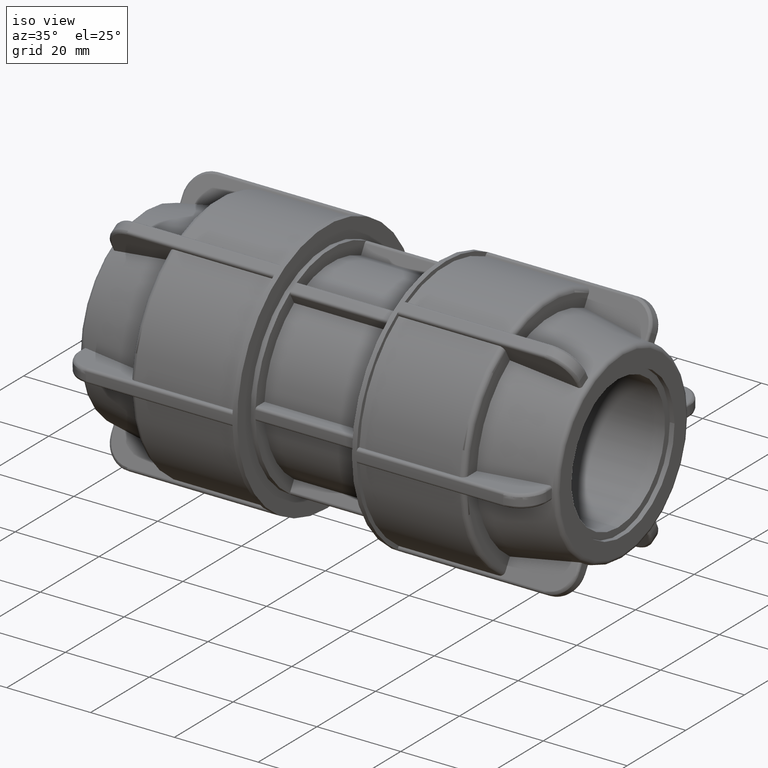
[diagram: clean part render]
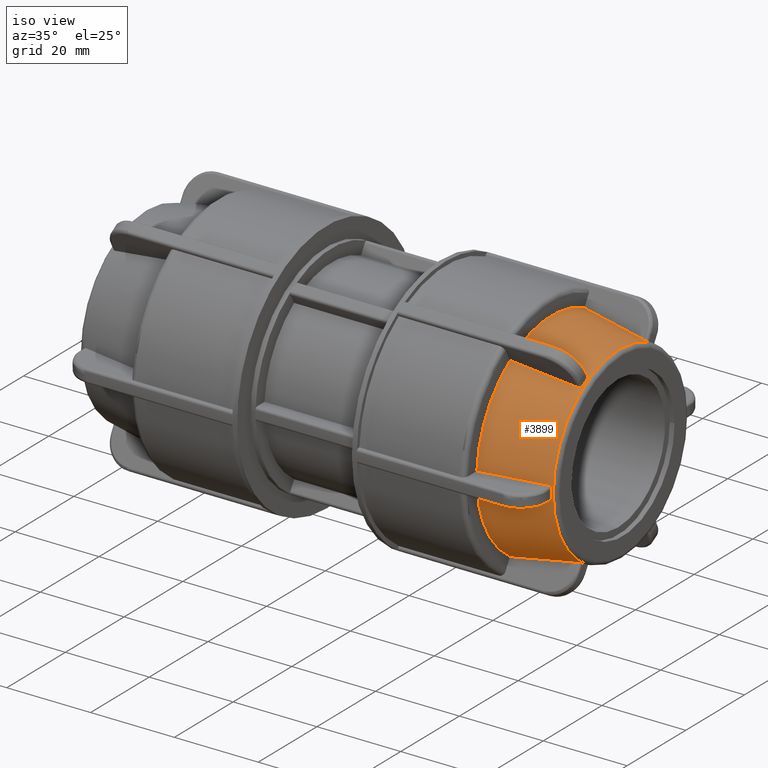
[diagram: same view with one face highlighted and labeled with its STEP entity id]
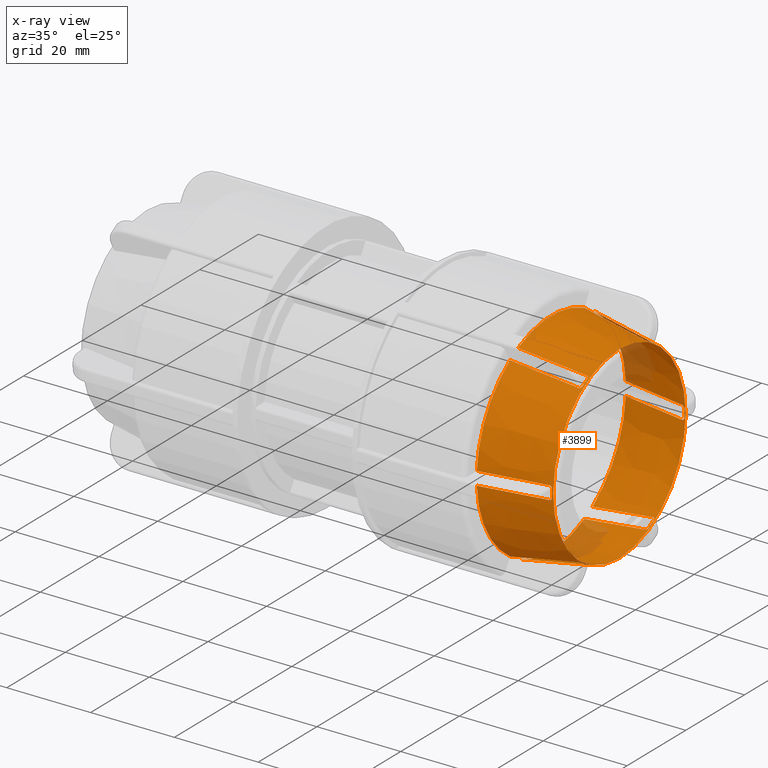
[diagram: x-ray of the same camera — body ghosted, the highlighted face saturated]
A machine part, iso view. The second image highlights one B-rep face of the part: STEP entity #3899.
The next image is the same camera in x-ray: the body ghosted, the highlighted face saturated — about 7% of this face is hidden behind the body in this view.
In plain terms, the highlighted conical surface has half-angle 10 deg.
Its self-contained STEP definition (entity closure, byte-faithful):
#16=CONICAL_SURFACE('',#4328,23.9075956850574,10.);
#55=(
BOUNDED_CURVE()
B_SPLINE_CURVE(2,(#7132,#7133,#7134),.UNSPECIFIED.,.F.,.F.)
B_SPLINE_CURVE_WITH_KNOTS((3,3),(0.0655542960663818,1.62073025413874),
 .UNSPECIFIED.)
CURVE()
GEOMETRIC_REPRESENTATION_ITEM()
RATIONAL_B_SPLINE_CURVE((1.000134261904,1.00165971067379,1.))
REPRESENTATION_ITEM('')
);
#56=(
BOUNDED_CURVE()
B_SPLINE_CURVE(2,(#7295,#7296,#7297),.UNSPECIFIED.,.F.,.F.)
B_SPLINE_CURVE_WITH_KNOTS((3,3),(0.0655542962843476,1.62073025413874),
 .UNSPECIFIED.)
CURVE()
GEOMETRIC_REPRESENTATION_ITEM()
RATIONAL_B_SPLINE_CURVE((1.00013426193979,1.00165971111071,1.))
REPRESENTATION_ITEM('')
);
#57=(
BOUNDED_CURVE()
B_SPLINE_CURVE(2,(#7458,#7459,#7460),.UNSPECIFIED.,.F.,.F.)
B_SPLINE_CURVE_WITH_KNOTS((3,3),(0.0655542961577784,1.62073025413874),
 .UNSPECIFIED.)
CURVE()
GEOMETRIC_REPRESENTATION_ITEM()
RATIONAL_B_SPLINE_CURVE((1.0001342619195,1.00165971086305,1.))
REPRESENTATION_ITEM('')
);
#58=(
BOUNDED_CURVE()
B_SPLINE_CURVE(2,(#7621,#7622,#7623),.UNSPECIFIED.,.F.,.F.)
B_SPLINE_CURVE_WITH_KNOTS((3,3),(0.0655542961547034,1.62073025413874),
 .UNSPECIFIED.)
CURVE()
GEOMETRIC_REPRESENTATION_ITEM()
RATIONAL_B_SPLINE_CURVE((1.00013426191843,1.0016597108499,1.))
REPRESENTATION_ITEM('')
);
#59=(
BOUNDED_CURVE()
B_SPLINE_CURVE(2,(#7784,#7785,#7786),.UNSPECIFIED.,.F.,.F.)
B_SPLINE_CURVE_WITH_KNOTS((3,3),(0.0655542976162313,1.62073025413874),
 .UNSPECIFIED.)
CURVE()
GEOMETRIC_REPRESENTATION_ITEM()
RATIONAL_B_SPLINE_CURVE((1.00013426214939,1.00165971366806,1.))
REPRESENTATION_ITEM('')
);
#60=(
BOUNDED_CURVE()
B_SPLINE_CURVE(2,(#7789,#7790,#7791),.UNSPECIFIED.,.F.,.F.)
B_SPLINE_CURVE_WITH_KNOTS((3,3),(0.,1.55517595793305),.UNSPECIFIED.)
CURVE()
GEOMETRIC_REPRESENTATION_ITEM()
RATIONAL_B_SPLINE_CURVE((1.,1.00165971095281,1.00013426192686))
REPRESENTATION_ITEM('')
);
#61=(
BOUNDED_CURVE()
B_SPLINE_CURVE(2,(#7810,#7811,#7812),.UNSPECIFIED.,.F.,.F.)
B_SPLINE_CURVE_WITH_KNOTS((3,3),(0.,1.55517595787353),.UNSPECIFIED.)
CURVE()
GEOMETRIC_REPRESENTATION_ITEM()
RATIONAL_B_SPLINE_CURVE((1.,1.0016597110938,1.00013426193838))
REPRESENTATION_ITEM('')
);
#62=(
BOUNDED_CURVE()
B_SPLINE_CURVE(2,(#7831,#7832,#7833),.UNSPECIFIED.,.F.,.F.)
B_SPLINE_CURVE_WITH_KNOTS((3,3),(0.,1.55517595798037),.UNSPECIFIED.)
CURVE()
GEOMETRIC_REPRESENTATION_ITEM()
RATIONAL_B_SPLINE_CURVE((1.,1.00165971085302,1.00013426191869))
REPRESENTATION_ITEM('')
);
#63=(
BOUNDED_CURVE()
B_SPLINE_CURVE(2,(#7852,#7853,#7854),.UNSPECIFIED.,.F.,.F.)
B_SPLINE_CURVE_WITH_KNOTS((3,3),(0.,1.55517595812831),.UNSPECIFIED.)
CURVE()
GEOMETRIC_REPRESENTATION_ITEM()
RATIONAL_B_SPLINE_CURVE((1.,1.00165971064241,1.00013426190135))
REPRESENTATION_ITEM('')
);
#64=(
BOUNDED_CURVE()
B_SPLINE_CURVE(2,(#7873,#7874,#7875),.UNSPECIFIED.,.F.,.F.)
B_SPLINE_CURVE_WITH_KNOTS((3,3),(0.,1.55517595809443),.UNSPECIFIED.)
CURVE()
GEOMETRIC_REPRESENTATION_ITEM()
RATIONAL_B_SPLINE_CURVE((1.,1.00165971071832,1.00013426190756))
REPRESENTATION_ITEM('')
);
#65=(
BOUNDED_CURVE()
B_SPLINE_CURVE(2,(#7970,#7971,#7972),.UNSPECIFIED.,.F.,.F.)
B_SPLINE_CURVE_WITH_KNOTS((3,3),(0.,1.55517595819276),.UNSPECIFIED.)
CURVE()
GEOMETRIC_REPRESENTATION_ITEM()
RATIONAL_B_SPLINE_CURVE((1.,1.00165971046912,1.0001342618872))
REPRESENTATION_ITEM('')
);
#66=(
BOUNDED_CURVE()
B_SPLINE_CURVE(2,(#8004,#8005,#8006),.UNSPECIFIED.,.F.,.F.)
B_SPLINE_CURVE_WITH_KNOTS((3,3),(0.0655542959458113,1.62073025413874),
 .UNSPECIFIED.)
CURVE()
GEOMETRIC_REPRESENTATION_ITEM()
RATIONAL_B_SPLINE_CURVE((1.00013426188761,1.00165971047426,1.))
REPRESENTATION_ITEM('')
);
#117=B_SPLINE_CURVE_WITH_KNOTS('',3,(#6978,#6979,#6980,#6981,#6982,#6983,
#6984,#6985,#6986,#6987,#6988,#6989,#6990),.UNSPECIFIED.,.F.,.F.,(4,3,2,
2,2,4),(-0.000767840524645836,0.,0.0231822966853898,0.0463645933707796,
0.0692313858836191,0.0916294434136542),.UNSPECIFIED.);
#120=B_SPLINE_CURVE_WITH_KNOTS('',3,(#7100,#7101,#7102,#7103,#7104,#7105,
#7106,#7107,#7108,#7109,#7110,#7111,#7112),.UNSPECIFIED.,.F.,.F.,(4,2,2,
2,3,4),(-0.0916294434136541,-0.069231385883619,-0.0463645933707797,-0.0231822966853898,
0.,0.000767840524952592),.UNSPECIFIED.);
#124=B_SPLINE_CURVE_WITH_KNOTS('',3,(#7189,#7190,#7191,#7192,#7193,#7194,
#7195,#7196,#7197,#7198,#7199,#7200,#7201),.UNSPECIFIED.,.F.,.F.,(4,3,2,
2,2,4),(-0.00076784052464629,0.,0.0231822966853897,0.0463645933707795,0.0692313858836189,
0.0916294434136541),.UNSPECIFIED.);
#127=B_SPLINE_CURVE_WITH_KNOTS('',3,(#7263,#7264,#7265,#7266,#7267,#7268,
#7269,#7270,#7271,#7272,#7273,#7274,#7275),.UNSPECIFIED.,.F.,.F.,(4,2,2,
2,3,4),(-0.0916294434136544,-0.069231385883619,-0.0463645933707794,-0.0231822966853897,
0.,0.000767840524954348),.UNSPECIFIED.);
#131=B_SPLINE_CURVE_WITH_KNOTS('',3,(#7352,#7353,#7354,#7355,#7356,#7357,
#7358,#7359,#7360,#7361,#7362,#7363,#7364),.UNSPECIFIED.,.F.,.F.,(4,3,2,
2,2,4),(-0.000767840524645642,0.,0.0231822966853896,0.0463645933707792,
0.0692313858836187,0.0916294434136544),.UNSPECIFIED.);
#134=B_SPLINE_CURVE_WITH_KNOTS('',3,(#7426,#7427,#7428,#7429,#7430,#7431,
#7432,#7433,#7434,#7435,#7436,#7437,#7438),.UNSPECIFIED.,.F.,.F.,(4,2,2,
2,3,4),(-0.091629443413654,-0.0692313858836189,-0.0463645933707795,-0.0231822966853897,
0.,0.000767840524953134),.UNSPECIFIED.);
#138=B_SPLINE_CURVE_WITH_KNOTS('',3,(#7515,#7516,#7517,#7518,#7519,#7520,
#7521,#7522,#7523,#7524,#7525,#7526,#7527),.UNSPECIFIED.,.F.,.F.,(4,3,2,
2,2,4),(-0.000767840524643574,0.,0.0231822966853894,0.0463645933707788,
0.0692313858836181,0.0916294434136536),.UNSPECIFIED.);
#141=B_SPLINE_CURVE_WITH_KNOTS('',3,(#7589,#7590,#7591,#7592,#7593,#7594,
#7595,#7596,#7597,#7598,#7599,#7600,#7601),.UNSPECIFIED.,.F.,.F.,(4,2,2,
2,3,4),(-0.0916294434136538,-0.0692313858836188,-0.0463645933707795,-0.0231822966853897,
0.,0.000767840524954132),.UNSPECIFIED.);
#145=B_SPLINE_CURVE_WITH_KNOTS('',3,(#7678,#7679,#7680,#7681,#7682,#7683,
#7684,#7685,#7686,#7687,#7688,#7689,#7690),.UNSPECIFIED.,.F.,.F.,(4,3,2,
2,2,4),(-0.000767840524644688,0.,0.0231822966853897,0.0463645933707795,
0.0692313858836188,0.0916294434136539),.UNSPECIFIED.);
#148=B_SPLINE_CURVE_WITH_KNOTS('',3,(#7752,#7753,#7754,#7755,#7756,#7757,
#7758,#7759,#7760,#7761,#7762,#7763,#7764),.UNSPECIFIED.,.F.,.F.,(4,2,2,
2,3,4),(-0.0916294434136547,-0.0692313858836193,-0.0463645933707798,-0.0231822966853899,
0.,0.000767840524964452),.UNSPECIFIED.);
#157=B_SPLINE_CURVE_WITH_KNOTS('',3,(#7974,#7975,#7976,#7977,#7978,#7979,
#7980,#7981,#7982,#7983,#7984,#7985,#7986),.UNSPECIFIED.,.F.,.F.,(4,3,2,
2,2,4),(-0.000767840524643001,0.,0.0231822966853897,0.0463645933707793,
0.069231385883619,0.0916294434136549),.UNSPECIFIED.);
#158=B_SPLINE_CURVE_WITH_KNOTS('',3,(#7990,#7991,#7992,#7993,#7994,#7995,
#7996,#7997,#7998,#7999,#8000,#8001,#8002),.UNSPECIFIED.,.F.,.F.,(4,2,2,
2,3,4),(-0.091629443413654,-0.0692313858836188,-0.0463645933707794,-0.0231822966853897,
0.,0.000767840524951757),.UNSPECIFIED.);
#209=FACE_BOUND('',#766,.T.);
#513=FACE_OUTER_BOUND('',#765,.T.);
#765=EDGE_LOOP('',(#3480,#3481,#3482,#3483,#3484,#3485,#3486,#3487,#3488,
#3489,#3490,#3491,#3492,#3493,#3494,#3495,#3496,#3497,#3498,#3499,#3500,
#3501,#3502,#3503,#3504,#3505,#3506,#3507,#3508,#3509,#3510,#3511,#3512,
#3513,#3514,#3515));
#766=EDGE_LOOP('',(#3516));
#1396=CIRCLE('',#4200,22.6010127580076);
#1417=CIRCLE('',#4229,22.6010127580076);
#1425=CIRCLE('',#4244,22.6010127580076);
#1433=CIRCLE('',#4259,22.6010127580076);
#1441=CIRCLE('',#4274,22.6010127580076);
#1466=CIRCLE('',#4329,25.4151913701147);
#1467=CIRCLE('',#4330,22.6010127580076);
#1468=CIRCLE('',#4331,25.4151913701147);
#1469=CIRCLE('',#4332,25.4151913701147);
#1470=CIRCLE('',#4333,25.4151913701147);
#1471=CIRCLE('',#4334,25.4151913701147);
#1472=CIRCLE('',#4335,25.4151913701147);
#1473=CIRCLE('',#4336,22.5457081218349);
#1716=VERTEX_POINT('',#6976);
#1717=VERTEX_POINT('',#6977);
#1719=VERTEX_POINT('',#6996);
#1746=VERTEX_POINT('',#7099);
#1750=VERTEX_POINT('',#7130);
#1755=VERTEX_POINT('',#7187);
#1756=VERTEX_POINT('',#7188);
#1758=VERTEX_POINT('',#7207);
#1762=VERTEX_POINT('',#7262);
#1766=VERTEX_POINT('',#7293);
#1771=VERTEX_POINT('',#7350);
#1772=VERTEX_POINT('',#7351);
#1774=VERTEX_POINT('',#7370);
#1778=VERTEX_POINT('',#7425);
#1782=VERTEX_POINT('',#7456);
#1787=VERTEX_POINT('',#7513);
#1788=VERTEX_POINT('',#7514);
#1790=VERTEX_POINT('',#7533);
#1794=VERTEX_POINT('',#7588);
#1798=VERTEX_POINT('',#7619);
#1803=VERTEX_POINT('',#7676);
#1804=VERTEX_POINT('',#7677);
#1806=VERTEX_POINT('',#7696);
#1810=VERTEX_POINT('',#7751);
#1814=VERTEX_POINT('',#7782);
#1815=VERTEX_POINT('',#7788);
#1819=VERTEX_POINT('',#7809);
#1823=VERTEX_POINT('',#7830);
#1827=VERTEX_POINT('',#7851);
#1831=VERTEX_POINT('',#7872);
#1844=VERTEX_POINT('',#7967);
#1845=VERTEX_POINT('',#7969);
#1846=VERTEX_POINT('',#7973);
#1847=VERTEX_POINT('',#7987);
#1848=VERTEX_POINT('',#7989);
#1849=VERTEX_POINT('',#8003);
#1850=VERTEX_POINT('',#8012);
#2215=EDGE_CURVE('',#1716,#1717,#117,.F.);
#2220=EDGE_CURVE('',#1716,#1719,#1396,.T.);
#2251=EDGE_CURVE('',#1746,#1719,#120,.F.);
#2257=EDGE_CURVE('',#1746,#1750,#55,.T.);
#2264=EDGE_CURVE('',#1755,#1756,#124,.F.);
#2269=EDGE_CURVE('',#1755,#1758,#1417,.T.);
#2276=EDGE_CURVE('',#1762,#1758,#127,.F.);
#2282=EDGE_CURVE('',#1762,#1766,#56,.T.);
#2289=EDGE_CURVE('',#1771,#1772,#131,.F.);
#2294=EDGE_CURVE('',#1771,#1774,#1425,.T.);
#2301=EDGE_CURVE('',#1778,#1774,#134,.F.);
#2307=EDGE_CURVE('',#1778,#1782,#57,.T.);
#2314=EDGE_CURVE('',#1787,#1788,#138,.F.);
#2319=EDGE_CURVE('',#1787,#1790,#1433,.T.);
#2326=EDGE_CURVE('',#1794,#1790,#141,.F.);
#2332=EDGE_CURVE('',#1794,#1798,#58,.T.);
#2339=EDGE_CURVE('',#1803,#1804,#145,.F.);
#2344=EDGE_CURVE('',#1803,#1806,#1441,.T.);
#2351=EDGE_CURVE('',#1810,#1806,#148,.F.);
#2357=EDGE_CURVE('',#1810,#1814,#59,.T.);
#2358=EDGE_CURVE('',#1815,#1717,#60,.T.);
#2363=EDGE_CURVE('',#1819,#1756,#61,.T.);
#2368=EDGE_CURVE('',#1823,#1772,#62,.T.);
#2373=EDGE_CURVE('',#1827,#1788,#63,.T.);
#2378=EDGE_CURVE('',#1831,#1804,#64,.T.);
#2410=EDGE_CURVE('',#1750,#1844,#1466,.T.);
#2411=EDGE_CURVE('',#1844,#1845,#65,.T.);
#2412=EDGE_CURVE('',#1846,#1845,#157,.F.);
#2413=EDGE_CURVE('',#1846,#1847,#1467,.T.);
#2414=EDGE_CURVE('',#1848,#1847,#158,.F.);
#2415=EDGE_CURVE('',#1848,#1849,#66,.T.);
#2416=EDGE_CURVE('',#1849,#1831,#1468,.T.);
#2417=EDGE_CURVE('',#1814,#1827,#1469,.T.);
#2418=EDGE_CURVE('',#1798,#1823,#1470,.T.);
#2419=EDGE_CURVE('',#1782,#1819,#1471,.T.);
#2420=EDGE_CURVE('',#1766,#1815,#1472,.T.);
#2421=EDGE_CURVE('',#1850,#1850,#1473,.T.);
#3480=ORIENTED_EDGE('',*,*,#2358,.T.);
#3481=ORIENTED_EDGE('',*,*,#2215,.F.);
#3482=ORIENTED_EDGE('',*,*,#2220,.T.);
#3483=ORIENTED_EDGE('',*,*,#2251,.F.);
#3484=ORIENTED_EDGE('',*,*,#2257,.T.);
#3485=ORIENTED_EDGE('',*,*,#2410,.T.);
#3486=ORIENTED_EDGE('',*,*,#2411,.T.);
#3487=ORIENTED_EDGE('',*,*,#2412,.F.);
#3488=ORIENTED_EDGE('',*,*,#2413,.T.);
#3489=ORIENTED_EDGE('',*,*,#2414,.F.);
#3490=ORIENTED_EDGE('',*,*,#2415,.T.);
#3491=ORIENTED_EDGE('',*,*,#2416,.T.);
#3492=ORIENTED_EDGE('',*,*,#2378,.T.);
#3493=ORIENTED_EDGE('',*,*,#2339,.F.);
#3494=ORIENTED_EDGE('',*,*,#2344,.T.);
#3495=ORIENTED_EDGE('',*,*,#2351,.F.);
#3496=ORIENTED_EDGE('',*,*,#2357,.T.);
#3497=ORIENTED_EDGE('',*,*,#2417,.T.);
#3498=ORIENTED_EDGE('',*,*,#2373,.T.);
#3499=ORIENTED_EDGE('',*,*,#2314,.F.);
#3500=ORIENTED_EDGE('',*,*,#2319,.T.);
#3501=ORIENTED_EDGE('',*,*,#2326,.F.);
#3502=ORIENTED_EDGE('',*,*,#2332,.T.);
#3503=ORIENTED_EDGE('',*,*,#2418,.T.);
#3504=ORIENTED_EDGE('',*,*,#2368,.T.);
#3505=ORIENTED_EDGE('',*,*,#2289,.F.);
#3506=ORIENTED_EDGE('',*,*,#2294,.T.);
#3507=ORIENTED_EDGE('',*,*,#2301,.F.);
#3508=ORIENTED_EDGE('',*,*,#2307,.T.);
#3509=ORIENTED_EDGE('',*,*,#2419,.T.);
#3510=ORIENTED_EDGE('',*,*,#2363,.T.);
#3511=ORIENTED_EDGE('',*,*,#2264,.F.);
#3512=ORIENTED_EDGE('',*,*,#2269,.T.);
#3513=ORIENTED_EDGE('',*,*,#2276,.F.);
#3514=ORIENTED_EDGE('',*,*,#2282,.T.);
#3515=ORIENTED_EDGE('',*,*,#2420,.T.);
#3516=ORIENTED_EDGE('',*,*,#2421,.F.);
#3899=ADVANCED_FACE('',(#513,#209),#16,.T.);
#4200=AXIS2_PLACEMENT_3D('',#6998,#5068,#5069);
#4229=AXIS2_PLACEMENT_3D('',#7209,#5146,#5147);
#4244=AXIS2_PLACEMENT_3D('',#7372,#5185,#5186);
#4259=AXIS2_PLACEMENT_3D('',#7535,#5224,#5225);
#4274=AXIS2_PLACEMENT_3D('',#7698,#5263,#5264);
#4328=AXIS2_PLACEMENT_3D('',#7966,#5395,#5396);
#4329=AXIS2_PLACEMENT_3D('',#7968,#5397,#5398);
#4330=AXIS2_PLACEMENT_3D('',#7988,#5399,#5400);
#4331=AXIS2_PLACEMENT_3D('',#8007,#5401,#5402);
#4332=AXIS2_PLACEMENT_3D('',#8008,#5403,#5404);
#4333=AXIS2_PLACEMENT_3D('',#8009,#5405,#5406);
#4334=AXIS2_PLACEMENT_3D('',#8010,#5407,#5408);
#4335=AXIS2_PLACEMENT_3D('',#8011,#5409,#5410);
#4336=AXIS2_PLACEMENT_3D('',#8013,#5411,#5412);
#5068=DIRECTION('center_axis',(1.,3.71680826341573E-16,1.13482456060336E-16));
#5069=DIRECTION('ref_axis',(-4.37199952896308E-16,1.,0.));
#5146=DIRECTION('center_axis',(1.,5.02719079451042E-16,1.13482456060336E-16));
#5147=DIRECTION('ref_axis',(-4.37199952896308E-16,1.,0.));
#5185=DIRECTION('center_axis',(1.,5.68238206005777E-16,3.69778549322349E-32));
#5186=DIRECTION('ref_axis',(-4.37199952896308E-16,1.,0.));
#5224=DIRECTION('center_axis',(1.,5.02719079451042E-16,-1.13482456060336E-16));
#5225=DIRECTION('ref_axis',(-4.37199952896308E-16,1.,0.));
#5263=DIRECTION('center_axis',(1.,3.71680826341573E-16,-1.13482456060336E-16));
#5264=DIRECTION('ref_axis',(-4.37199952896308E-16,1.,0.));
#5395=DIRECTION('center_axis',(-1.,-3.06161699786838E-16,0.));
#5396=DIRECTION('ref_axis',(-4.37199952896308E-16,1.,0.));
#5397=DIRECTION('center_axis',(1.,3.06161699786838E-16,0.));
#5398=DIRECTION('ref_axis',(0.,0.,-1.));
#5399=DIRECTION('center_axis',(1.,3.06161699786838E-16,0.));
#5400=DIRECTION('ref_axis',(-4.37199952896308E-16,1.,0.));
#5401=DIRECTION('center_axis',(1.,3.06161699786838E-16,0.));
#5402=DIRECTION('ref_axis',(0.,0.,-1.));
#5403=DIRECTION('center_axis',(1.,3.06161699786838E-16,0.));
#5404=DIRECTION('ref_axis',(0.,0.,-1.));
#5405=DIRECTION('center_axis',(1.,3.06161699786838E-16,0.));
#5406=DIRECTION('ref_axis',(0.,0.,-1.));
#5407=DIRECTION('center_axis',(1.,3.06161699786838E-16,0.));
#5408=DIRECTION('ref_axis',(0.,0.,-1.));
#5409=DIRECTION('center_axis',(1.,3.06161699786838E-16,0.));
#5410=DIRECTION('ref_axis',(0.,0.,-1.));
#5411=DIRECTION('center_axis',(1.,3.93945674671423E-16,-3.44314501433615E-32));
#5412=DIRECTION('ref_axis',(3.93945674671423E-16,-1.,3.06161699786838E-17));
#6976=CARTESIAN_POINT('',(55.86,10.4322946955236,-20.0492644521782));
#6977=CARTESIAN_POINT('',(55.25,9.94042720757571,-20.4173249724612));
#6978=CARTESIAN_POINT('Ctrl Pts',(55.2499999999999,9.94042720757551,-20.4173249724608));
#6979=CARTESIAN_POINT('Ctrl Pts',(55.2525313182367,9.94020348170955,-20.416937467894));
#6980=CARTESIAN_POINT('Ctrl Pts',(55.2550574753589,9.9399944147475,-20.4165438385735));
#6981=CARTESIAN_POINT('Ctrl Pts',(55.2575780596981,9.9397998637907,-20.4161442349146));
#6982=CARTESIAN_POINT('Ctrl Pts',(55.3336784113928,9.93392606857401,-20.4040795804956));
#6983=CARTESIAN_POINT('Ctrl Pts',(55.4149581703995,9.94128998502657,-20.3845723913928));
#6984=CARTESIAN_POINT('Ctrl Pts',(55.5645201742986,9.98562496325053,-20.3335149258585));
#6985=CARTESIAN_POINT('Ctrl Pts',(55.6327944579925,10.0225964086339,-20.3019416647875));
#6986=CARTESIAN_POINT('Ctrl Pts',(55.7396642789802,10.1114407461394,-20.2367738582365));
#6987=CARTESIAN_POINT('Ctrl Pts',(55.7855987874435,10.1689040960951,-20.1989590460628));
#6988=CARTESIAN_POINT('Ctrl Pts',(55.8454314138073,10.2962725015387,-20.1224762525526));
#6989=CARTESIAN_POINT('Ctrl Pts',(55.86,10.3658858286557,-20.0838191796702));
#6990=CARTESIAN_POINT('Ctrl Pts',(55.86,10.4322946955236,-20.0492644521782));
#6996=CARTESIAN_POINT('',(55.86,12.1470249950168,-19.0592644521782));
#6998=CARTESIAN_POINT('Origin',(55.86,1.71021925500928E-14,0.));
#7099=CARTESIAN_POINT('',(55.25,12.7117084996859,-18.8173249724611));
#7100=CARTESIAN_POINT('Ctrl Pts',(55.86,12.1470249950168,-19.0592644521782));
#7101=CARTESIAN_POINT('Ctrl Pts',(55.86,12.2101547002797,-19.0190300501801));
#7102=CARTESIAN_POINT('Ctrl Pts',(55.8454314138073,12.2784393709903,-18.9780716768959));
#7103=CARTESIAN_POINT('Ctrl Pts',(55.7855987874435,12.4083596158443,-18.9060087988974));
#7104=CARTESIAN_POINT('Ctrl Pts',(55.7396642789802,12.4698398788039,-18.8751514841361));
#7105=CARTESIAN_POINT('Ctrl Pts',(55.6327944579925,12.5706990235387,-18.8307939341494));
#7106=CARTESIAN_POINT('Ctrl Pts',(55.5645201742986,12.6165279923982,-18.8145623537683));
#7107=CARTESIAN_POINT('Ctrl Pts',(55.4149581703995,12.6829125437158,-18.8016958691173));
#7108=CARTESIAN_POINT('Ctrl Pts',(55.3336784113928,12.7034882232615,-18.8050721249494));
#7109=CARTESIAN_POINT('Ctrl Pts',(55.2575780596981,12.7109996228679,-18.8161913080331));
#7110=CARTESIAN_POINT('Ctrl Pts',(55.2550574753579,12.7112484143097,-18.8165595959337));
#7111=CARTESIAN_POINT('Ctrl Pts',(55.2525313182358,12.7114847738199,-18.8169374678942));
#7112=CARTESIAN_POINT('Ctrl Pts',(55.25,12.7117084996857,-18.8173249724608));
#7130=CARTESIAN_POINT('',(39.9,14.0680295414836,-21.1665419282295));
#7132=CARTESIAN_POINT('Ctrl Pts',(55.2500000000004,12.7117084996859,-18.817324972461));
#7133=CARTESIAN_POINT('Ctrl Pts',(48.0085874818365,13.3517273099741,-19.9258700696802));
#7134=CARTESIAN_POINT('Ctrl Pts',(39.9,14.0680295414836,-21.1665419282296));
#7187=CARTESIAN_POINT('',(55.86,-12.1470249950168,-19.0592644521781));
#7188=CARTESIAN_POINT('',(55.25,-12.7117084996859,-18.8173249724612));
#7189=CARTESIAN_POINT('Ctrl Pts',(55.2499999999999,-12.7117084996857,-18.8173249724608));
#7190=CARTESIAN_POINT('Ctrl Pts',(55.2525313182367,-12.7114847738198,-18.816937467894));
#7191=CARTESIAN_POINT('Ctrl Pts',(55.255057475359,-12.7112484143096,-18.8165595959335));
#7192=CARTESIAN_POINT('Ctrl Pts',(55.2575780596981,-12.7109996228679,-18.8161913080331));
#7193=CARTESIAN_POINT('Ctrl Pts',(55.3336784113928,-12.7034882232615,-18.8050721249493));
#7194=CARTESIAN_POINT('Ctrl Pts',(55.4149581703995,-12.6829125437158,-18.8016958691172));
#7195=CARTESIAN_POINT('Ctrl Pts',(55.5645201742986,-12.6165279923982,-18.8145623537682));
#7196=CARTESIAN_POINT('Ctrl Pts',(55.6327944579925,-12.5706990235387,-18.8307939341494));
#7197=CARTESIAN_POINT('Ctrl Pts',(55.7396642789802,-12.4698398788039,-18.8751514841361));
#7198=CARTESIAN_POINT('Ctrl Pts',(55.7855987874435,-12.4083596158443,-18.9060087988974));
#7199=CARTESIAN_POINT('Ctrl Pts',(55.8454314138073,-12.2784393709903,-18.9780716768959));
#7200=CARTESIAN_POINT('Ctrl Pts',(55.86,-12.2101547002797,-19.0190300501801));
#7201=CARTESIAN_POINT('Ctrl Pts',(55.86,-12.1470249950168,-19.0592644521781));
#7207=CARTESIAN_POINT('',(55.86,-10.4322946955236,-20.0492644521782));
#7209=CARTESIAN_POINT('Origin',(55.86,1.71021925500928E-14,0.));
#7262=CARTESIAN_POINT('',(55.25,-9.94042720757572,-20.4173249724612));
#7263=CARTESIAN_POINT('Ctrl Pts',(55.86,-10.4322946955236,-20.0492644521782));
#7264=CARTESIAN_POINT('Ctrl Pts',(55.86,-10.3658858286557,-20.0838191796702));
#7265=CARTESIAN_POINT('Ctrl Pts',(55.8454314138073,-10.2962725015387,-20.1224762525526));
#7266=CARTESIAN_POINT('Ctrl Pts',(55.7855987874435,-10.1689040960951,-20.1989590460627));
#7267=CARTESIAN_POINT('Ctrl Pts',(55.7396642789802,-10.1114407461394,-20.2367738582365));
#7268=CARTESIAN_POINT('Ctrl Pts',(55.6327944579925,-10.0225964086339,-20.3019416647875));
#7269=CARTESIAN_POINT('Ctrl Pts',(55.5645201742986,-9.98562496325053,-20.3335149258585));
#7270=CARTESIAN_POINT('Ctrl Pts',(55.4149581703995,-9.94128998502657,-20.3845723913928));
#7271=CARTESIAN_POINT('Ctrl Pts',(55.3336784113928,-9.93392606857401,-20.4040795804956));
#7272=CARTESIAN_POINT('Ctrl Pts',(55.2575780596981,-9.9397998637907,-20.4161442349145));
#7273=CARTESIAN_POINT('Ctrl Pts',(55.2550574753579,-9.93999441474757,-20.4165438385737));
#7274=CARTESIAN_POINT('Ctrl Pts',(55.2525313182358,-9.94020348170964,-20.4169374678942));
#7275=CARTESIAN_POINT('Ctrl Pts',(55.2499999999999,-9.94042720757551,-20.4173249724608));
#7293=CARTESIAN_POINT('',(39.9,-11.2967482493734,-22.7665419282295));
#7295=CARTESIAN_POINT('Ctrl Pts',(55.2500000000004,-9.94042720757569,-20.4173249724611));
#7296=CARTESIAN_POINT('Ctrl Pts',(48.0085875089548,-10.5804460154677,-21.5258700655297));
#7297=CARTESIAN_POINT('Ctrl Pts',(39.9,-11.2967482493734,-22.7665419282295));
#7350=CARTESIAN_POINT('',(55.86,-22.5793196905404,0.990000000000008));
#7351=CARTESIAN_POINT('',(55.25,-22.6521357072616,1.60000000000001));
#7352=CARTESIAN_POINT('Ctrl Pts',(55.25,-22.6521357072612,1.60000000000001));
#7353=CARTESIAN_POINT('Ctrl Pts',(55.2525313182367,-22.6516882555293,1.60000000000001));
#7354=CARTESIAN_POINT('Ctrl Pts',(55.255057475359,-22.651242829057,1.59998424264));
#7355=CARTESIAN_POINT('Ctrl Pts',(55.2575780596981,-22.6507994866585,1.59995292688143));
#7356=CARTESIAN_POINT('Ctrl Pts',(55.3336784113928,-22.6374142918355,1.59900745554623));
#7357=CARTESIAN_POINT('Ctrl Pts',(55.4149581703995,-22.6242025287424,1.58287652227559));
#7358=CARTESIAN_POINT('Ctrl Pts',(55.5645201742986,-22.6021529556487,1.51895257209023));
#7359=CARTESIAN_POINT('Ctrl Pts',(55.6327944579925,-22.5932954321726,1.47114773063808));
#7360=CARTESIAN_POINT('Ctrl Pts',(55.7396642789802,-22.5812806249433,1.36162237410043));
#7361=CARTESIAN_POINT('Ctrl Pts',(55.7855987874435,-22.5772637119394,1.29295024716539));
#7362=CARTESIAN_POINT('Ctrl Pts',(55.8454314138073,-22.5747118725289,1.14440457565668));
#7363=CARTESIAN_POINT('Ctrl Pts',(55.86,-22.5760405289354,1.06478912949014));
#7364=CARTESIAN_POINT('Ctrl Pts',(55.86,-22.5793196905404,0.990000000000007));
#7370=CARTESIAN_POINT('',(55.86,-22.5793196905404,-0.989999999999994));
#7372=CARTESIAN_POINT('Origin',(55.86,1.71021925500928E-14,0.));
#7425=CARTESIAN_POINT('',(55.25,-22.6521357072616,-1.59999999999999));
#7426=CARTESIAN_POINT('Ctrl Pts',(55.86,-22.5793196905404,-0.989999999999994));
#7427=CARTESIAN_POINT('Ctrl Pts',(55.86,-22.5760405289354,-1.06478912949012));
#7428=CARTESIAN_POINT('Ctrl Pts',(55.8454314138073,-22.5747118725289,-1.14440457565667));
#7429=CARTESIAN_POINT('Ctrl Pts',(55.7855987874435,-22.5772637119394,-1.29295024716537));
#7430=CARTESIAN_POINT('Ctrl Pts',(55.7396642789802,-22.5812806249433,-1.36162237410041));
#7431=CARTESIAN_POINT('Ctrl Pts',(55.6327944579925,-22.5932954321726,-1.47114773063806));
#7432=CARTESIAN_POINT('Ctrl Pts',(55.5645201742986,-22.6021529556487,-1.51895257209021));
#7433=CARTESIAN_POINT('Ctrl Pts',(55.4149581703995,-22.6242025287424,-1.58287652227557));
#7434=CARTESIAN_POINT('Ctrl Pts',(55.3336784113928,-22.6374142918355,-1.59900745554621));
#7435=CARTESIAN_POINT('Ctrl Pts',(55.2575780596981,-22.6507994866585,-1.59995292688142));
#7436=CARTESIAN_POINT('Ctrl Pts',(55.255057475358,-22.6512428290572,-1.59998424264));
#7437=CARTESIAN_POINT('Ctrl Pts',(55.2525313182358,-22.6516882555295,-1.59999999999999));
#7438=CARTESIAN_POINT('Ctrl Pts',(55.25,-22.6521357072612,-1.59999999999999));
#7456=CARTESIAN_POINT('',(39.9,-25.364777790857,-1.59999999999999));
#7458=CARTESIAN_POINT('Ctrl Pts',(55.2500000000004,-22.6521357072615,-1.59999999999999));
#7459=CARTESIAN_POINT('Ctrl Pts',(48.0085874932514,-23.9321733258208,-1.59999999999999));
#7460=CARTESIAN_POINT('Ctrl Pts',(39.9,-25.3647777908571,-1.59999999999999));
#7513=CARTESIAN_POINT('',(55.86,-10.4322946955236,20.0492644521782));
#7514=CARTESIAN_POINT('',(55.25,-9.94042720757564,20.4173249724611));
#7515=CARTESIAN_POINT('Ctrl Pts',(55.25,-9.94042720757549,20.4173249724608));
#7516=CARTESIAN_POINT('Ctrl Pts',(55.2525313182367,-9.94020348170953,20.416937467894));
#7517=CARTESIAN_POINT('Ctrl Pts',(55.255057475359,-9.93999441474747,20.4165438385735));
#7518=CARTESIAN_POINT('Ctrl Pts',(55.2575780596981,-9.93979986379068,20.4161442349146));
#7519=CARTESIAN_POINT('Ctrl Pts',(55.3336784113928,-9.93392606857399,20.4040795804956));
#7520=CARTESIAN_POINT('Ctrl Pts',(55.4149581703995,-9.94128998502655,20.3845723913928));
#7521=CARTESIAN_POINT('Ctrl Pts',(55.5645201742986,-9.98562496325051,20.3335149258585));
#7522=CARTESIAN_POINT('Ctrl Pts',(55.6327944579925,-10.0225964086339,20.3019416647875));
#7523=CARTESIAN_POINT('Ctrl Pts',(55.7396642789802,-10.1114407461394,20.2367738582365));
#7524=CARTESIAN_POINT('Ctrl Pts',(55.7855987874435,-10.1689040960951,20.1989590460628));
#7525=CARTESIAN_POINT('Ctrl Pts',(55.8454314138073,-10.2962725015386,20.1224762525526));
#7526=CARTESIAN_POINT('Ctrl Pts',(55.86,-10.3658858286557,20.0838191796702));
#7527=CARTESIAN_POINT('Ctrl Pts',(55.86,-10.4322946955236,20.0492644521782));
#7533=CARTESIAN_POINT('',(55.86,-12.1470249950168,19.0592644521782));
#7535=CARTESIAN_POINT('Origin',(55.86,1.71021925500928E-14,0.));
#7588=CARTESIAN_POINT('',(55.25,-12.7117084996859,18.8173249724611));
#7589=CARTESIAN_POINT('Ctrl Pts',(55.86,-12.1470249950168,19.0592644521782));
#7590=CARTESIAN_POINT('Ctrl Pts',(55.86,-12.2101547002797,19.0190300501801));
#7591=CARTESIAN_POINT('Ctrl Pts',(55.8454314138073,-12.2784393709903,18.9780716768959));
#7592=CARTESIAN_POINT('Ctrl Pts',(55.7855987874435,-12.4083596158443,18.9060087988974));
#7593=CARTESIAN_POINT('Ctrl Pts',(55.7396642789802,-12.4698398788039,18.8751514841361));
#7594=CARTESIAN_POINT('Ctrl Pts',(55.6327944579925,-12.5706990235387,18.8307939341494));
#7595=CARTESIAN_POINT('Ctrl Pts',(55.5645201742986,-12.6165279923982,18.8145623537682));
#7596=CARTESIAN_POINT('Ctrl Pts',(55.4149581703995,-12.6829125437158,18.8016958691172));
#7597=CARTESIAN_POINT('Ctrl Pts',(55.3336784113928,-12.7034882232615,18.8050721249494));
#7598=CARTESIAN_POINT('Ctrl Pts',(55.2575780596981,-12.7109996228678,18.8161913080331));
#7599=CARTESIAN_POINT('Ctrl Pts',(55.2550574753579,-12.7112484143096,18.8165595959337));
#7600=CARTESIAN_POINT('Ctrl Pts',(55.2525313182357,-12.7114847738198,18.8169374678942));
#7601=CARTESIAN_POINT('Ctrl Pts',(55.2499999999999,-12.7117084996857,18.8173249724608));
#7619=CARTESIAN_POINT('',(39.9,-14.0680295414836,21.1665419282295));
#7621=CARTESIAN_POINT('Ctrl Pts',(55.2500000000004,-12.7117084996859,18.8173249724611));
#7622=CARTESIAN_POINT('Ctrl Pts',(48.0085874928182,-13.3517273090037,19.9258700679994));
#7623=CARTESIAN_POINT('Ctrl Pts',(39.9,-14.0680295414836,21.1665419282295));
#7676=CARTESIAN_POINT('',(55.86,12.1470249950168,19.0592644521782));
#7677=CARTESIAN_POINT('',(55.25,12.7117084996859,18.8173249724611));
#7678=CARTESIAN_POINT('Ctrl Pts',(55.2499999999999,12.7117084996857,18.8173249724608));
#7679=CARTESIAN_POINT('Ctrl Pts',(55.2525313182367,12.7114847738198,18.816937467894));
#7680=CARTESIAN_POINT('Ctrl Pts',(55.2550574753589,12.7112484143096,18.8165595959335));
#7681=CARTESIAN_POINT('Ctrl Pts',(55.2575780596981,12.7109996228679,18.8161913080331));
#7682=CARTESIAN_POINT('Ctrl Pts',(55.3336784113928,12.7034882232615,18.8050721249494));
#7683=CARTESIAN_POINT('Ctrl Pts',(55.4149581703995,12.6829125437158,18.8016958691172));
#7684=CARTESIAN_POINT('Ctrl Pts',(55.5645201742986,12.6165279923982,18.8145623537682));
#7685=CARTESIAN_POINT('Ctrl Pts',(55.6327944579925,12.5706990235387,18.8307939341494));
#7686=CARTESIAN_POINT('Ctrl Pts',(55.7396642789802,12.4698398788039,18.8751514841361));
#7687=CARTESIAN_POINT('Ctrl Pts',(55.7855987874435,12.4083596158443,18.9060087988974));
#7688=CARTESIAN_POINT('Ctrl Pts',(55.8454314138073,12.2784393709903,18.9780716768959));
#7689=CARTESIAN_POINT('Ctrl Pts',(55.86,12.2101547002797,19.0190300501801));
#7690=CARTESIAN_POINT('Ctrl Pts',(55.86,12.1470249950168,19.0592644521782));
#7696=CARTESIAN_POINT('',(55.86,10.4322946955236,20.0492644521782));
#7698=CARTESIAN_POINT('Origin',(55.86,1.71021925500928E-14,0.));
#7751=CARTESIAN_POINT('',(55.25,9.94042720757605,20.4173249724617));
#7752=CARTESIAN_POINT('Ctrl Pts',(55.86,10.4322946955236,20.0492644521782));
#7753=CARTESIAN_POINT('Ctrl Pts',(55.86,10.3658858286558,20.0838191796702));
#7754=CARTESIAN_POINT('Ctrl Pts',(55.8454314138073,10.2962725015387,20.1224762525526));
#7755=CARTESIAN_POINT('Ctrl Pts',(55.7855987874435,10.1689040960951,20.1989590460628));
#7756=CARTESIAN_POINT('Ctrl Pts',(55.7396642789802,10.1114407461394,20.2367738582365));
#7757=CARTESIAN_POINT('Ctrl Pts',(55.6327944579925,10.022596408634,20.3019416647875));
#7758=CARTESIAN_POINT('Ctrl Pts',(55.5645201742986,9.98562496325056,20.3335149258585));
#7759=CARTESIAN_POINT('Ctrl Pts',(55.4149581703995,9.94128998502659,20.3845723913928));
#7760=CARTESIAN_POINT('Ctrl Pts',(55.3336784113928,9.93392606857403,20.4040795804956));
#7761=CARTESIAN_POINT('Ctrl Pts',(55.2575780596981,9.93979986379072,20.4161442349146));
#7762=CARTESIAN_POINT('Ctrl Pts',(55.2550574753579,9.9399944147476,20.4165438385737));
#7763=CARTESIAN_POINT('Ctrl Pts',(55.2525313182357,9.94020348170967,20.4169374678942));
#7764=CARTESIAN_POINT('Ctrl Pts',(55.2499999999998,9.94042720757554,20.4173249724608));
#7782=CARTESIAN_POINT('',(39.9,11.2967482493734,22.7665419282295));
#7784=CARTESIAN_POINT('Ctrl Pts',(55.2500000000004,9.94042720757602,20.4173249724616));
#7785=CARTESIAN_POINT('Ctrl Pts',(48.0085876738476,10.5804460008973,21.5258700402931));
#7786=CARTESIAN_POINT('Ctrl Pts',(39.9,11.2967482493734,22.7665419282295));
#7788=CARTESIAN_POINT('',(39.9,11.2967482493734,-22.7665419282295));
#7789=CARTESIAN_POINT('Ctrl Pts',(39.9,11.2967482493734,-22.7665419282296));
#7790=CARTESIAN_POINT('Ctrl Pts',(48.0085874991666,10.5804460163326,-21.5258700670278));
#7791=CARTESIAN_POINT('Ctrl Pts',(55.2500000000004,9.94042720757567,-20.4173249724611));
#7809=CARTESIAN_POINT('',(39.9,-14.0680295414836,-21.1665419282295));
#7810=CARTESIAN_POINT('Ctrl Pts',(39.9,-14.0680295414836,-21.1665419282295));
#7811=CARTESIAN_POINT('Ctrl Pts',(48.0085875067289,-13.3517273077746,-19.9258700658704));
#7812=CARTESIAN_POINT('Ctrl Pts',(55.2500000000004,-12.7117084996859,-18.8173249724611));
#7830=CARTESIAN_POINT('',(39.9,-25.364777790857,1.60000000000001));
#7831=CARTESIAN_POINT('Ctrl Pts',(39.9,-25.3647777908571,1.60000000000001));
#7832=CARTESIAN_POINT('Ctrl Pts',(48.0085874932449,-23.9321733258219,1.60000000000001));
#7833=CARTESIAN_POINT('Ctrl Pts',(55.2500000000004,-22.6521357072615,1.60000000000001));
#7851=CARTESIAN_POINT('',(39.9,-11.2967482493734,22.7665419282295));
#7852=CARTESIAN_POINT('Ctrl Pts',(39.9,-11.2967482493734,22.7665419282295));
#7853=CARTESIAN_POINT('Ctrl Pts',(48.0085874754597,-10.5804460184274,21.5258700706561));
#7854=CARTESIAN_POINT('Ctrl Pts',(55.2500000000004,-9.9404272075756,20.417324972461));
#7872=CARTESIAN_POINT('',(39.9,14.0680295414836,21.1665419282295));
#7873=CARTESIAN_POINT('Ctrl Pts',(39.9,14.0680295414837,21.1665419282295));
#7874=CARTESIAN_POINT('Ctrl Pts',(48.0085874797328,13.3517273101601,19.9258700700021));
#7875=CARTESIAN_POINT('Ctrl Pts',(55.2500000000004,12.7117084996859,18.817324972461));
#7966=CARTESIAN_POINT('Origin',(48.45,1.48335343546723E-14,0.));
#7967=CARTESIAN_POINT('',(39.9,25.3647777908571,-1.6));
#7968=CARTESIAN_POINT('Origin',(39.9,1.22158518214949E-14,0.));
#7969=CARTESIAN_POINT('',(55.25,22.6521357072615,-1.6));
#7970=CARTESIAN_POINT('Ctrl Pts',(39.9,25.3647777908571,-1.6));
#7971=CARTESIAN_POINT('Ctrl Pts',(48.0085874671222,23.9321733304385,-1.6));
#7972=CARTESIAN_POINT('Ctrl Pts',(55.2500000000004,22.6521357072615,-1.6));
#7973=CARTESIAN_POINT('',(55.86,22.5793196905404,-0.990000000000003));
#7974=CARTESIAN_POINT('Ctrl Pts',(55.25,22.6521357072612,-1.6));
#7975=CARTESIAN_POINT('Ctrl Pts',(55.2525313182367,22.6516882555293,-1.6));
#7976=CARTESIAN_POINT('Ctrl Pts',(55.2550574753589,22.6512428290571,-1.59998424263999));
#7977=CARTESIAN_POINT('Ctrl Pts',(55.2575780596981,22.6507994866586,-1.59995292688142));
#7978=CARTESIAN_POINT('Ctrl Pts',(55.3336784113928,22.6374142918355,-1.59900745554622));
#7979=CARTESIAN_POINT('Ctrl Pts',(55.4149581703995,22.6242025287424,-1.58287652227558));
#7980=CARTESIAN_POINT('Ctrl Pts',(55.5645201742987,22.6021529556488,-1.51895257209021));
#7981=CARTESIAN_POINT('Ctrl Pts',(55.6327944579925,22.5932954321727,-1.47114773063807));
#7982=CARTESIAN_POINT('Ctrl Pts',(55.7396642789802,22.5812806249434,-1.36162237410043));
#7983=CARTESIAN_POINT('Ctrl Pts',(55.7855987874435,22.5772637119394,-1.29295024716539));
#7984=CARTESIAN_POINT('Ctrl Pts',(55.8454314138073,22.574711872529,-1.14440457565667));
#7985=CARTESIAN_POINT('Ctrl Pts',(55.86,22.5760405289354,-1.06478912949013));
#7986=CARTESIAN_POINT('Ctrl Pts',(55.86,22.5793196905404,-0.990000000000003));
#7987=CARTESIAN_POINT('',(55.86,22.5793196905404,0.989999999999998));
#7988=CARTESIAN_POINT('Origin',(55.86,1.71021925500928E-14,0.));
#7989=CARTESIAN_POINT('',(55.25,22.6521357072615,1.6));
#7990=CARTESIAN_POINT('Ctrl Pts',(55.86,22.5793196905404,0.989999999999997));
#7991=CARTESIAN_POINT('Ctrl Pts',(55.86,22.5760405289354,1.06478912949013));
#7992=CARTESIAN_POINT('Ctrl Pts',(55.8454314138073,22.574711872529,1.14440457565667));
#7993=CARTESIAN_POINT('Ctrl Pts',(55.7855987874435,22.5772637119394,1.29295024716538));
#7994=CARTESIAN_POINT('Ctrl Pts',(55.7396642789802,22.5812806249434,1.36162237410042));
#7995=CARTESIAN_POINT('Ctrl Pts',(55.6327944579925,22.5932954321727,1.47114773063806));
#7996=CARTESIAN_POINT('Ctrl Pts',(55.5645201742986,22.6021529556488,1.51895257209021));
#7997=CARTESIAN_POINT('Ctrl Pts',(55.4149581703995,22.6242025287424,1.58287652227558));
#7998=CARTESIAN_POINT('Ctrl Pts',(55.3336784113928,22.6374142918355,1.59900745554622));
#7999=CARTESIAN_POINT('Ctrl Pts',(55.2575780596981,22.6507994866586,1.59995292688142));
#8000=CARTESIAN_POINT('Ctrl Pts',(55.2550574753579,22.6512428290573,1.59998424264));
#8001=CARTESIAN_POINT('Ctrl Pts',(55.2525313182358,22.6516882555295,1.6));
#8002=CARTESIAN_POINT('Ctrl Pts',(55.25,22.6521357072612,1.6));
#8003=CARTESIAN_POINT('',(39.9,25.3647777908571,1.6));
#8004=CARTESIAN_POINT('Ctrl Pts',(55.2500000000004,22.6521357072615,1.6));
#8005=CARTESIAN_POINT('Ctrl Pts',(48.0085874671406,23.9321733304352,1.6));
#8006=CARTESIAN_POINT('Ctrl Pts',(39.9,25.3647777908571,1.6));
#8007=CARTESIAN_POINT('Origin',(39.9,1.22158518214949E-14,0.));
#8008=CARTESIAN_POINT('Origin',(39.9,1.22158518214949E-14,0.));
#8009=CARTESIAN_POINT('Origin',(39.9,1.22158518214949E-14,0.));
#8010=CARTESIAN_POINT('Origin',(39.9,1.22158518214949E-14,0.));
#8011=CARTESIAN_POINT('Origin',(39.9,1.22158518214949E-14,0.));
#8012=CARTESIAN_POINT('',(56.1736481776669,22.5457081218349,-1.38052646429578E-15));
#8013=CARTESIAN_POINT('Origin',(56.1736481776669,1.55431223447522E-14,-3.45131616073945E-15));